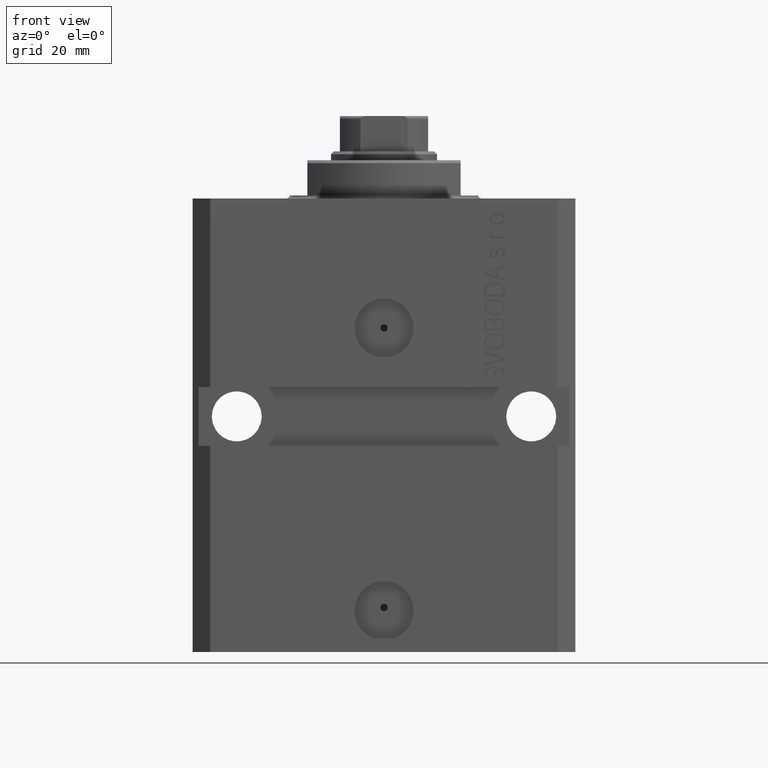
[diagram: clean part render]
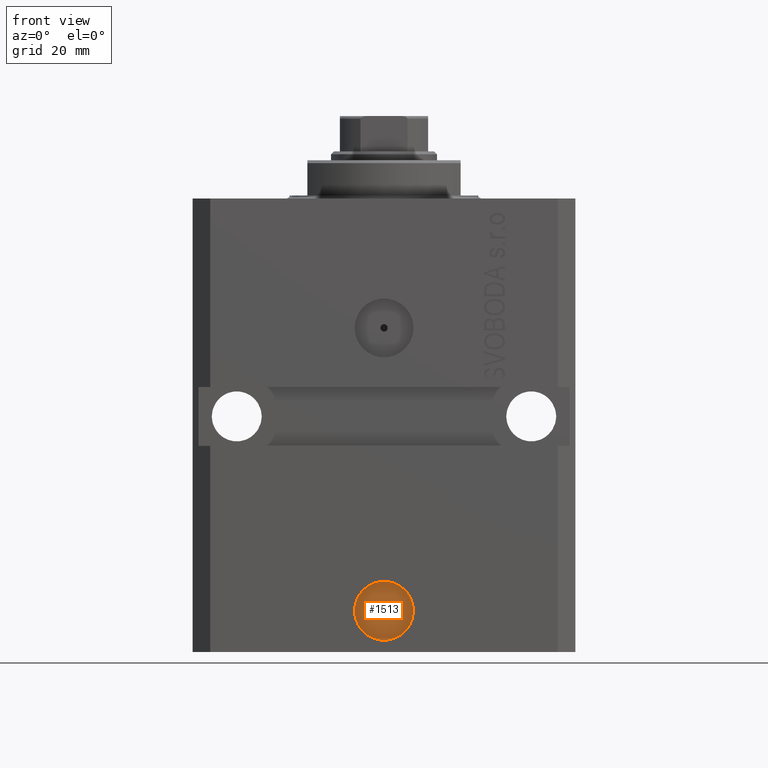
[diagram: same view with one face highlighted and labeled with its STEP entity id]
A machine part, front view. The second image highlights one B-rep face of the part: STEP entity #1513.
In plain terms, the highlighted planar face has unit normal (0, -1, 0).
Its self-contained STEP definition (entity closure, byte-faithful):
#1513 = ADVANCED_FACE ( 'NONE', ( #42786, #46124 ), #31818, .T. ) ;
#9441 = EDGE_CURVE ( 'NONE', #12697, #10884, #15922, .T. ) ;
#9624 = DIRECTION ( 'NONE',  ( 1.000000000000000000, 1.176083712526788232E-16, 0.000000000000000000 ) ) ;
#10124 = CIRCLE ( 'NONE', #45920, 5.000000000000005329 ) ;
#10695 = DIRECTION ( 'NONE',  ( 1.176083712526788232E-16, -1.000000000000000000, 0.000000000000000000 ) ) ;
#10884 = VERTEX_POINT ( 'NONE', #34482 ) ;
#12697 = VERTEX_POINT ( 'NONE', #16251 ) ;
#13594 = CARTESIAN_POINT ( 'NONE',  ( 2.422732447805124080E-15, -20.59999999999949694, -69.99999999999998579 ) ) ;
#13802 = DIRECTION ( 'NONE',  ( 1.000000000000000000, 0.000000000000000000, 0.000000000000000000 ) ) ;
#14033 = CARTESIAN_POINT ( 'NONE',  ( 2.422732447805124080E-15, -20.59999999999949694, -69.47499999999999432 ) ) ;
#15356 = EDGE_LOOP ( 'NONE', ( #31253, #40203 ) ) ;
#15717 = DIRECTION ( 'NONE',  ( 1.176083712526788232E-16, -1.000000000000000000, 0.000000000000000000 ) ) ;
#15922 = CIRCLE ( 'NONE', #22006, 0.6250000000000038858 ) ;
#16251 = CARTESIAN_POINT ( 'NONE',  ( 0.6250000000000063283, -20.59999999999949694, -69.47499999999999432 ) ) ;
#16695 = DIRECTION ( 'NONE',  ( 1.000000000000000000, 0.000000000000000000, 0.000000000000000000 ) ) ;
#17508 = EDGE_CURVE ( 'NONE', #30736, #44432, #10124, .T. ) ;
#20378 = DIRECTION ( 'NONE',  ( 1.176083712526788232E-16, -1.000000000000000000, 0.000000000000000000 ) ) ;
#22006 = AXIS2_PLACEMENT_3D ( 'NONE', #14033, #27893, #13802 ) ;
#23127 = DIRECTION ( 'NONE',  ( 1.000000000000000000, 0.000000000000000000, 0.000000000000000000 ) ) ;
#25317 = ORIENTED_EDGE ( 'NONE', *, *, #44552, .F. ) ;
#26704 = CARTESIAN_POINT ( 'NONE',  ( 2.422732447805124080E-15, -20.59999999999949694, -69.99999999999998579 ) ) ;
#27832 = ORIENTED_EDGE ( 'NONE', *, *, #9441, .F. ) ;
#27893 = DIRECTION ( 'NONE',  ( 1.176083712526788232E-16, -1.000000000000000000, 0.000000000000000000 ) ) ;
#30286 = CARTESIAN_POINT ( 'NONE',  ( -5.000000000000002665, -20.59999999999949694, -69.99999999999998579 ) ) ;
#30736 = VERTEX_POINT ( 'NONE', #30286 ) ;
#31253 = ORIENTED_EDGE ( 'NONE', *, *, #41099, .T. ) ;
#31818 = PLANE ( 'NONE',  #43225 ) ;
#34482 = CARTESIAN_POINT ( 'NONE',  ( -0.6250000000000015543, -20.59999999999949694, -69.47499999999999432 ) ) ;
#37732 = AXIS2_PLACEMENT_3D ( 'NONE', #13594, #45333, #16695 ) ;
#37825 = CIRCLE ( 'NONE', #46953, 0.6250000000000038858 ) ;
#39554 = DIRECTION ( 'NONE',  ( 1.000000000000000000, 0.000000000000000000, 0.000000000000000000 ) ) ;
#40203 = ORIENTED_EDGE ( 'NONE', *, *, #17508, .T. ) ;
#41099 = EDGE_CURVE ( 'NONE', #44432, #30736, #46848, .T. ) ;
#42432 = CARTESIAN_POINT ( 'NONE',  ( 5.000000000000007994, -20.59999999999949694, -69.99999999999998579 ) ) ;
#42786 = FACE_BOUND ( 'NONE', #44553, .T. ) ;
#43122 = CARTESIAN_POINT ( 'NONE',  ( 2.422732447805124080E-15, -20.59999999999949694, -69.47499999999999432 ) ) ;
#43225 = AXIS2_PLACEMENT_3D ( 'NONE', #45892, #20378, #9624 ) ;
#44432 = VERTEX_POINT ( 'NONE', #42432 ) ;
#44552 = EDGE_CURVE ( 'NONE', #10884, #12697, #37825, .T. ) ;
#44553 = EDGE_LOOP ( 'NONE', ( #27832, #25317 ) ) ;
#45333 = DIRECTION ( 'NONE',  ( 1.176083712526788232E-16, -1.000000000000000000, 0.000000000000000000 ) ) ;
#45892 = CARTESIAN_POINT ( 'NONE',  ( 2.422732447805124080E-15, -20.59999999999949694, -69.99999999999998579 ) ) ;
#45920 = AXIS2_PLACEMENT_3D ( 'NONE', #26704, #15717, #23127 ) ;
#46124 = FACE_OUTER_BOUND ( 'NONE', #15356, .T. ) ;
#46848 = CIRCLE ( 'NONE', #37732, 5.000000000000005329 ) ;
#46953 = AXIS2_PLACEMENT_3D ( 'NONE', #43122, #10695, #39554 ) ;